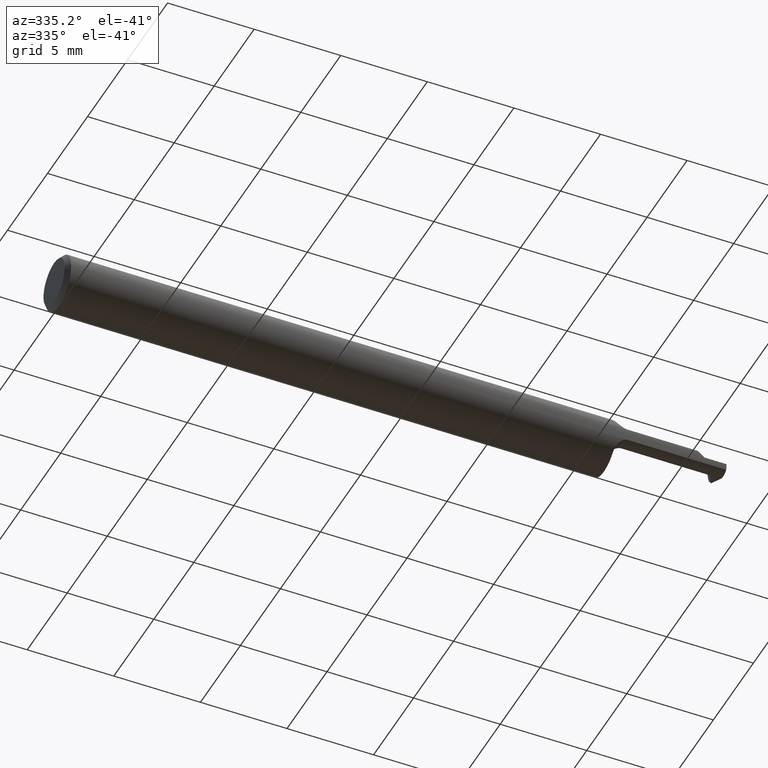
[diagram: clean part render]
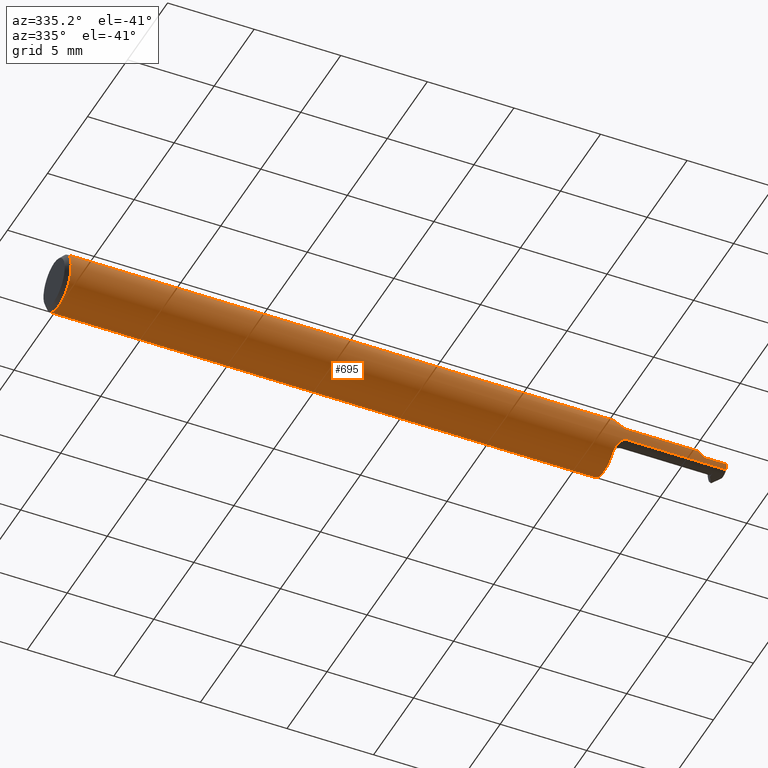
[diagram: same view with one face highlighted and labeled with its STEP entity id]
A machine part, auxiliary view. The second image highlights one B-rep face of the part: STEP entity #695.
In plain terms, the highlighted cylindrical surface (edge-blend (fillet) strip) has radius 1.5837 mm, axis along (-1, -0, -0).
Its self-contained STEP definition (entity closure, byte-faithful):
#6 = CARTESIAN_POINT ( 'NONE',  ( 1.252087078649324781, -0.05320835086854511925, 0.03322816149382785966 ) ) ;
#18 = VERTEX_POINT ( 'NONE', #97 ) ;
#23 = VERTEX_POINT ( 'NONE', #641 ) ;
#30 = B_SPLINE_CURVE_WITH_KNOTS ( 'NONE', 3,
 ( #440, #497, #6, #164, #659, #552, #229, #332 ),
 .UNSPECIFIED., .F., .F.,
 ( 4, 2, 2, 4 ),
 ( 4.183662842067274700E-06, 0.0006133011813381161964, 0.0009178599405861351647, 0.001222418699834154241 ),
 .UNSPECIFIED. ) ;
#39 = VECTOR ( 'NONE', #114, 39.37007874015748143 ) ;
#42 = CARTESIAN_POINT ( 'NONE',  ( 0.01000000000000001582, 0.03386738844375224849, 0.05234999999999997294 ) ) ;
#46 = DIRECTION ( 'NONE',  ( -1.000000000000000000, -0.000000000000000000, -0.000000000000000000 ) ) ;
#48 = CARTESIAN_POINT ( 'NONE',  ( 1.445250564478592015, -0.06235000000000000958, 0.004749435521408015490 ) ) ;
#53 = VERTEX_POINT ( 'NONE', #262 ) ;
#63 = CARTESIAN_POINT ( 'NONE',  ( 1.274999999999999911, -0.06073604143947648748, -0.01409452979925874747 ) ) ;
#70 = ORIENTED_EDGE ( 'NONE', *, *, #221, .F. ) ;
#84 = CARTESIAN_POINT ( 'NONE',  ( 1.435905470200741219, -0.06073604143947652217, 0.01409452979925866420 ) ) ;
#85 = AXIS2_PLACEMENT_3D ( 'NONE', #431, #604, #274 ) ;
#97 = CARTESIAN_POINT ( 'NONE',  ( 1.250000000000000000, -0.04274258451472191106, -0.04539376575039633099 ) ) ;
#101 = DIRECTION ( 'NONE',  ( 1.000000000000000000, 0.000000000000000000, 0.000000000000000000 ) ) ;
#110 = CIRCLE ( 'NONE', #161, 0.06235000000000000264 ) ;
#112 = LINE ( 'NONE', #337, #175 ) ;
#114 = DIRECTION ( 'NONE',  ( -1.000000000000000000, -0.000000000000000000, -0.000000000000000000 ) ) ;
#115 = CARTESIAN_POINT ( 'NONE',  ( 1.252117253329443791, -0.05323027456427581461, -0.03318292701701414799 ) ) ;
#132 = AXIS2_PLACEMENT_3D ( 'NONE', #155, #217, #436 ) ;
#133 = VERTEX_POINT ( 'NONE', #494 ) ;
#136 = ORIENTED_EDGE ( 'NONE', *, *, #507, .F. ) ;
#142 = EDGE_CURVE ( 'NONE', #370, #18, #281, .T. ) ;
#153 = DIRECTION ( 'NONE',  ( 0.000000000000000000, 0.000000000000000000, -1.000000000000000000 ) ) ;
#155 = CARTESIAN_POINT ( 'NONE',  ( 0.000000000000000000, 0.000000000000000000, 0.000000000000000000 ) ) ;
#156 = CARTESIAN_POINT ( 'NONE',  ( 1.250000000000000000, -0.04274258451472191106, -0.04539376575039633099 ) ) ;
#159 = DIRECTION ( 'NONE',  ( 0.000000000000000000, 0.000000000000000000, 1.000000000000000000 ) ) ;
#161 = AXIS2_PLACEMENT_3D ( 'NONE', #581, #528, #312 ) ;
#164 = CARTESIAN_POINT ( 'NONE',  ( 1.258393315188583994, -0.05769563112685629352, 0.02388861346910408148 ) ) ;
#173 = EDGE_CURVE ( 'NONE', #53, #677, #559, .T. ) ;
#175 = VECTOR ( 'NONE', #101, 39.37007874015748143 ) ;
#202 = EDGE_CURVE ( 'NONE', #334, #492, #522, .T. ) ;
#209 = CARTESIAN_POINT ( 'NONE',  ( 1.249999999999999778, -0.04862953753773307380, -0.03985063481687040055 ) ) ;
#217 = DIRECTION ( 'NONE',  ( -1.000000000000000000, -0.000000000000000000, -0.000000000000000000 ) ) ;
#219 = CARTESIAN_POINT ( 'NONE',  ( 1.267174290130400394, -0.06030086259927001230, -0.01605959189429576051 ) ) ;
#221 = EDGE_CURVE ( 'NONE', #23, #289, #30, .T. ) ;
#224 = ORIENTED_EDGE ( 'NONE', *, *, #173, .T. ) ;
#229 = CARTESIAN_POINT ( 'NONE',  ( 1.270918107686048959, -0.06073604143947845813, 0.01409452979925067233 ) ) ;
#233 = EDGE_CURVE ( 'NONE', #605, #442, #671, .T. ) ;
#235 = CYLINDRICAL_SURFACE ( 'NONE', #132, 0.06235000000000000264 ) ;
#237 = EDGE_CURVE ( 'NONE', #589, #711, #112, .T. ) ;
#249 = CARTESIAN_POINT ( 'NONE',  ( 1.373475710773593983, -0.06073604143947651524, 0.01409452979925868328 ) ) ;
#252 = VECTOR ( 'NONE', #585, 39.37007874015748143 ) ;
#258 = EDGE_CURVE ( 'NONE', #711, #23, #679, .T. ) ;
#262 = CARTESIAN_POINT ( 'NONE',  ( 1.500000000000000222, -0.06073604143947645279, -0.01409452979925867808 ) ) ;
#265 = EDGE_CURVE ( 'NONE', #133, #492, #437, .T. ) ;
#268 = CARTESIAN_POINT ( 'NONE',  ( 1.270918043451031210, -0.06073604143947650830, -0.01409452979925873532 ) ) ;
#270 = ORIENTED_EDGE ( 'NONE', *, *, #237, .F. ) ;
#274 = DIRECTION ( 'NONE',  ( 0.000000000000000000, 1.000000000000000000, 0.000000000000000000 ) ) ;
#277 = FACE_OUTER_BOUND ( 'NONE', #307, .T. ) ;
#281 = B_SPLINE_CURVE_WITH_KNOTS ( 'NONE', 3,
 ( #483, #268, #219, #714, #710, #115, #209, #156 ),
 .UNSPECIFIED., .F., .F.,
 ( 4, 2, 2, 4 ),
 ( 1.967541529506627283E-07, 0.0003062111729972520212, 0.0006122255918415536171, 0.001224254429530156809 ),
 .UNSPECIFIED. ) ;
#282 = CARTESIAN_POINT ( 'NONE',  ( 0.01000000000000001582, 0.000000000000000000, 0.000000000000000000 ) ) ;
#289 = VERTEX_POINT ( 'NONE', #502 ) ;
#299 = CARTESIAN_POINT ( 'NONE',  ( 0.01000000000000001582, 0.000000000000000000, -0.06235000000000000264 ) ) ;
#306 = CARTESIAN_POINT ( 'NONE',  ( 1.373475710773593983, -0.06073604143947651524, -0.01409452979925868328 ) ) ;
#307 = EDGE_LOOP ( 'NONE', ( #136, #224, #411, #688, #633, #70, #579, #270, #391, #602, #512, #464, #503 ) ) ;
#312 = DIRECTION ( 'NONE',  ( 0.000000000000000000, 1.000000000000000000, 0.000000000000000000 ) ) ;
#332 = CARTESIAN_POINT ( 'NONE',  ( 1.274999999999999911, -0.06073604143947648748, 0.01409452979925874747 ) ) ;
#334 = VERTEX_POINT ( 'NONE', #299 ) ;
#337 = CARTESIAN_POINT ( 'NONE',  ( 0.000000000000000000, -0.03386738844375224849, 0.05234999999999997294 ) ) ;
#342 = CARTESIAN_POINT ( 'NONE',  ( 1.450000000000000178, -0.06235000000000005121, 6.123233995736799470E-18 ) ) ;
#348 = CARTESIAN_POINT ( 'NONE',  ( 0.01000000000000001582, 0.000000000000000000, 0.000000000000000000 ) ) ;
#351 = CARTESIAN_POINT ( 'NONE',  ( 1.250000000000000000, -0.03386738844375225543, 0.05234999999999997294 ) ) ;
#370 = VERTEX_POINT ( 'NONE', #63 ) ;
#390 = VECTOR ( 'NONE', #463, 39.37007874015748143 ) ;
#391 = ORIENTED_EDGE ( 'NONE', *, *, #676, .T. ) ;
#403 = AXIS2_PLACEMENT_3D ( 'NONE', #348, #490, #447 ) ;
#411 = ORIENTED_EDGE ( 'NONE', *, *, #600, .T. ) ;
#412 = EDGE_CURVE ( 'NONE', #289, #442, #517, .T. ) ;
#413 = DIRECTION ( 'NONE',  ( -1.000000000000000000, -0.000000000000000000, -0.000000000000000000 ) ) ;
#415 = LINE ( 'NONE', #306, #252 ) ;
#431 = CARTESIAN_POINT ( 'NONE',  ( 1.250000000000000000, 0.000000000000000000, 0.000000000000000000 ) ) ;
#435 = EDGE_CURVE ( 'NONE', #18, #133, #110, .T. ) ;
#436 = DIRECTION ( 'NONE',  ( 0.000000000000000000, 0.000000000000000000, 1.000000000000000000 ) ) ;
#437 = LINE ( 'NONE', #718, #583 ) ;
#440 = CARTESIAN_POINT ( 'NONE',  ( 1.250000000000000000, -0.04274258451472191106, 0.04539376575039633099 ) ) ;
#442 = VERTEX_POINT ( 'NONE', #84 ) ;
#445 = CARTESIAN_POINT ( 'NONE',  ( 1.435905470200741219, -0.06073604143947652217, 0.01409452979925866420 ) ) ;
#447 = DIRECTION ( 'NONE',  ( 0.000000000000000000, 0.000000000000000000, -1.000000000000000000 ) ) ;
#463 = DIRECTION ( 'NONE',  ( 1.000000000000000000, 3.846348412950270995E-17, 0.000000000000000000 ) ) ;
#464 = ORIENTED_EDGE ( 'NONE', *, *, #435, .F. ) ;
#483 = CARTESIAN_POINT ( 'NONE',  ( 1.274999999999999911, -0.06073604143947648748, -0.01409452979925874747 ) ) ;
#486 = CARTESIAN_POINT ( 'NONE',  ( 1.440531964389071051, -0.06180967512810751907, 0.009468035610928925150 ) ) ;
#490 = DIRECTION ( 'NONE',  ( 1.000000000000000000, 0.000000000000000000, 0.000000000000000000 ) ) ;
#491 = DIRECTION ( 'NONE',  ( 1.000000000000000000, 0.000000000000000000, 0.000000000000000000 ) ) ;
#492 = VERTEX_POINT ( 'NONE', #42 ) ;
#494 = CARTESIAN_POINT ( 'NONE',  ( 1.250000000000000000, 0.03386738844375224849, 0.05234999999999997294 ) ) ;
#497 = CARTESIAN_POINT ( 'NONE',  ( 1.250000000000000666, -0.04863025920668312407, 0.03984995529633319350 ) ) ;
#502 = CARTESIAN_POINT ( 'NONE',  ( 1.274999999999999911, -0.06073604143947648748, 0.01409452979925874747 ) ) ;
#503 = ORIENTED_EDGE ( 'NONE', *, *, #142, .F. ) ;
#507 = EDGE_CURVE ( 'NONE', #53, #370, #415, .T. ) ;
#512 = ORIENTED_EDGE ( 'NONE', *, *, #265, .F. ) ;
#517 = LINE ( 'NONE', #249, #390 ) ;
#522 = CIRCLE ( 'NONE', #618, 0.06235000000000000264 ) ;
#528 = DIRECTION ( 'NONE',  ( 1.000000000000000000, 3.846348412950270995E-17, 0.000000000000000000 ) ) ;
#542 = CARTESIAN_POINT ( 'NONE',  ( 1.500000000000000222, 0.000000000000000000, 0.000000000000000000 ) ) ;
#552 = CARTESIAN_POINT ( 'NONE',  ( 1.267156662623709629, -0.06029909404253418898, 0.01606812257809475328 ) ) ;
#555 = CARTESIAN_POINT ( 'NONE',  ( 2.249639673992810223E-32, -0.06234999999999999570, 1.836970198721039302E-16 ) ) ;
#559 = CIRCLE ( 'NONE', #654, 0.06235000000000000264 ) ;
#579 = ORIENTED_EDGE ( 'NONE', *, *, #258, .F. ) ;
#581 = CARTESIAN_POINT ( 'NONE',  ( 1.250000000000000000, 0.000000000000000000, 0.000000000000000000 ) ) ;
#583 = VECTOR ( 'NONE', #413, 39.37007874015748143 ) ;
#585 = DIRECTION ( 'NONE',  ( -1.000000000000000000, -3.846348412950270995E-17, -0.000000000000000000 ) ) ;
#589 = VERTEX_POINT ( 'NONE', #674 ) ;
#600 = EDGE_CURVE ( 'NONE', #677, #605, #611, .T. ) ;
#601 = CARTESIAN_POINT ( 'NONE',  ( 1.450000000000000178, -0.06235000000000005121, 6.123233995736799470E-18 ) ) ;
#602 = ORIENTED_EDGE ( 'NONE', *, *, #202, .T. ) ;
#604 = DIRECTION ( 'NONE',  ( 1.000000000000000000, 3.846348412950270995E-17, 0.000000000000000000 ) ) ;
#605 = VERTEX_POINT ( 'NONE', #342 ) ;
#611 = LINE ( 'NONE', #555, #39 ) ;
#618 = AXIS2_PLACEMENT_3D ( 'NONE', #282, #491, #153 ) ;
#633 = ORIENTED_EDGE ( 'NONE', *, *, #412, .F. ) ;
#641 = CARTESIAN_POINT ( 'NONE',  ( 1.250000000000000000, -0.04274258451472191106, 0.04539376575039633099 ) ) ;
#654 = AXIS2_PLACEMENT_3D ( 'NONE', #542, #46, #159 ) ;
#659 = CARTESIAN_POINT ( 'NONE',  ( 1.260909952257189603, -0.05876722237226802287, 0.02098997094289226789 ) ) ;
#662 = CARTESIAN_POINT ( 'NONE',  ( 1.500000000000000222, -0.06235000000000000264, 0.000000000000000000 ) ) ;
#671 =( BOUNDED_CURVE ( )  B_SPLINE_CURVE ( 3, ( #601, #48, #486, #445 ),
 .UNSPECIFIED., .F., .T. ) 
 B_SPLINE_CURVE_WITH_KNOTS ( ( 4, 4 ),
 ( 4.712388980384689674, 4.940414924607588354 ),
 .UNSPECIFIED. ) 
 CURVE ( )  GEOMETRIC_REPRESENTATION_ITEM ( )  RATIONAL_B_SPLINE_CURVE ( ( 1.000000000000000000, 0.9956717057219215405, 0.9956717057219215405, 1.000000000000000000 ) ) 
 REPRESENTATION_ITEM ( '' )  );
#674 = CARTESIAN_POINT ( 'NONE',  ( 0.01000000000000001582, -0.03386738844375224849, 0.05234999999999997294 ) ) ;
#676 = EDGE_CURVE ( 'NONE', #589, #334, #713, .T. ) ;
#677 = VERTEX_POINT ( 'NONE', #662 ) ;
#679 = CIRCLE ( 'NONE', #85, 0.06235000000000000264 ) ;
#688 = ORIENTED_EDGE ( 'NONE', *, *, #233, .T. ) ;
#695 = ADVANCED_FACE ( 'NONE', ( #277 ), #235, .T. ) ;
#710 = CARTESIAN_POINT ( 'NONE',  ( 1.258379651799175658, -0.05768568243143085833, -0.02390912192702902492 ) ) ;
#711 = VERTEX_POINT ( 'NONE', #351 ) ;
#713 = CIRCLE ( 'NONE', #403, 0.06235000000000000264 ) ;
#714 = CARTESIAN_POINT ( 'NONE',  ( 1.260942042317410028, -0.05877762567767842727, -0.02095937121485488483 ) ) ;
#718 = CARTESIAN_POINT ( 'NONE',  ( 0.000000000000000000, 0.03386738844375224849, 0.05234999999999997294 ) ) ;